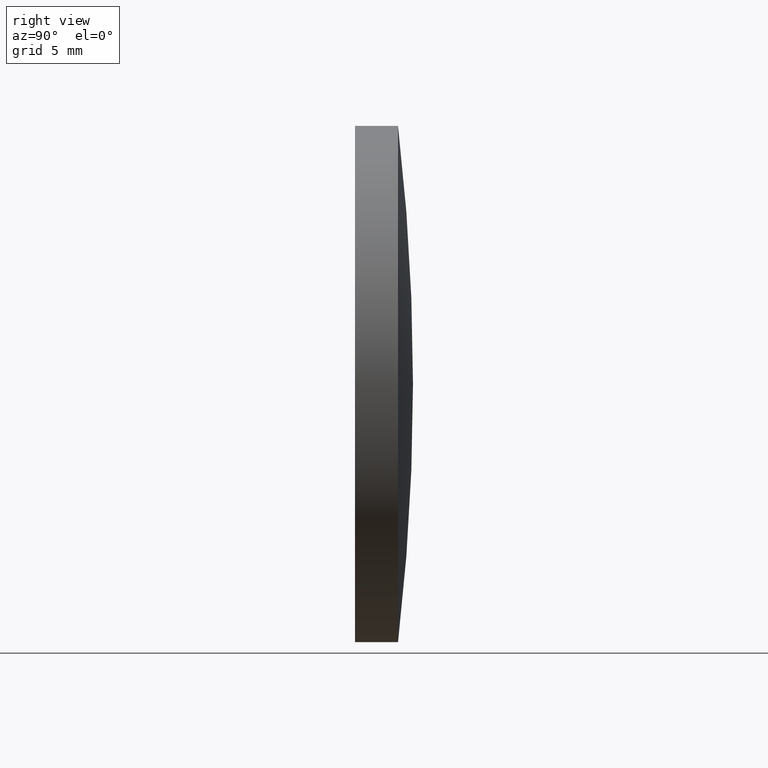
[diagram: clean part render]
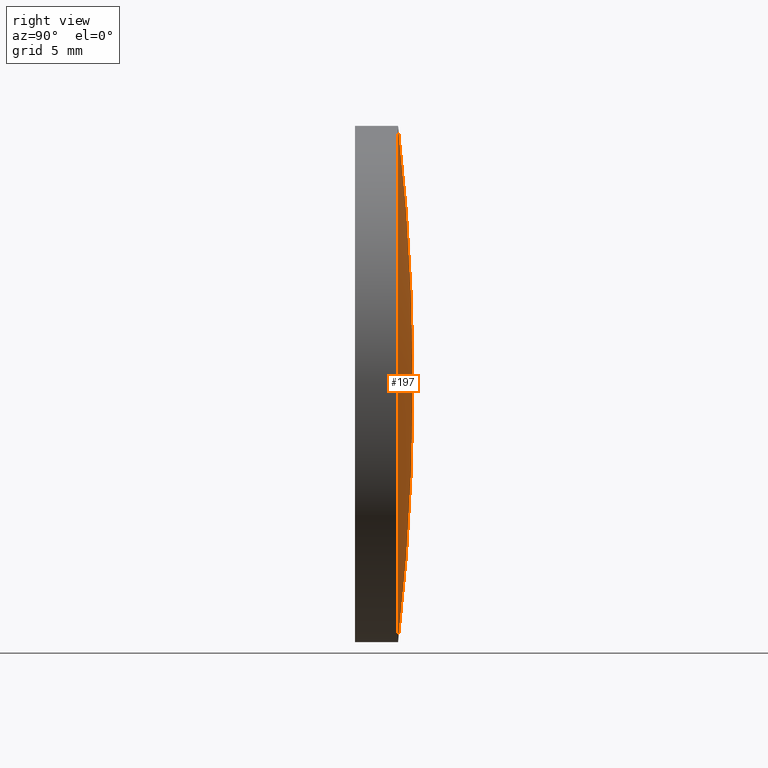
[diagram: same view with one face highlighted and labeled with its STEP entity id]
A machine part, right view. The second image highlights one B-rep face of the part: STEP entity #197.
In plain terms, the highlighted toroidal blend (fillet) surface has major radius 0.0293 mm and minor (blend) radius 129.24 mm.
Its self-contained STEP definition (entity closure, byte-faithful):
#15 = AXIS2_PLACEMENT_3D ( 'NONE', #142, #141, #201 ) ;
#33 = EDGE_LOOP ( 'NONE', ( #169, #168, #51 ) ) ;
#37 = CIRCLE ( 'NONE', #96, 15.00000000000000000 ) ;
#42 = FACE_OUTER_BOUND ( 'NONE', #33, .T. ) ;
#45 = DIRECTION ( 'NONE',  ( 0.000000000000000000, 0.000000000000000000, 1.000000000000000000 ) ) ;
#48 = AXIS2_PLACEMENT_3D ( 'NONE', #159, #176, #145 ) ;
#51 = ORIENTED_EDGE ( 'NONE', *, *, #121, .F. ) ;
#62 = CARTESIAN_POINT ( 'NONE',  ( 0.000000000000000000, 3.370000000000000107, 0.000000000000000000 ) ) ;
#75 = CARTESIAN_POINT ( 'NONE',  ( 1.836970198721026039E-15, 2.500000000000000444, -14.99999999999996980 ) ) ;
#77 = CARTESIAN_POINT ( 'NONE',  ( 0.000000000000000000, 2.500000000000000444, 14.99999999999996980 ) ) ;
#79 = CIRCLE ( 'NONE', #132, 129.2400000000000375 ) ;
#88 = VERTEX_POINT ( 'NONE', #75 ) ;
#93 = TOROIDAL_SURFACE ( 'NONE', #48, 0.02931019276951850328, 129.2400000000000375 ) ;
#96 = AXIS2_PLACEMENT_3D ( 'NONE', #144, #111, #45 ) ;
#111 = DIRECTION ( 'NONE',  ( -0.000000000000000000, 1.000000000000000000, -0.000000000000000000 ) ) ;
#112 = VERTEX_POINT ( 'NONE', #77 ) ;
#121 = EDGE_CURVE ( 'NONE', #112, #164, #143, .T. ) ;
#126 = CARTESIAN_POINT ( 'NONE',  ( 3.589463375758273298E-18, -125.8699966763873448, -0.02931019276951850328 ) ) ;
#132 = AXIS2_PLACEMENT_3D ( 'NONE', #126, #186, #160 ) ;
#137 = EDGE_CURVE ( 'NONE', #88, #164, #79, .T. ) ;
#141 = DIRECTION ( 'NONE',  ( -1.000000000000000000, 0.000000000000000000, 0.000000000000000000 ) ) ;
#142 = CARTESIAN_POINT ( 'NONE',  ( 0.000000000000000000, -125.8699966763873448, 0.02931019276951850328 ) ) ;
#143 = CIRCLE ( 'NONE', #15, 129.2400000000000375 ) ;
#144 = CARTESIAN_POINT ( 'NONE',  ( 0.000000000000000000, 2.499999999999998224, 0.000000000000000000 ) ) ;
#145 = DIRECTION ( 'NONE',  ( 0.000000000000000000, 0.000000000000000000, 1.000000000000000000 ) ) ;
#159 = CARTESIAN_POINT ( 'NONE',  ( 0.000000000000000000, -125.8699966763873448, 0.000000000000000000 ) ) ;
#160 = DIRECTION ( 'NONE',  ( 1.224646799147353454E-16, 0.000000000000000000, -1.000000000000000000 ) ) ;
#164 = VERTEX_POINT ( 'NONE', #62 ) ;
#167 = EDGE_CURVE ( 'NONE', #112, #88, #37, .T. ) ;
#168 = ORIENTED_EDGE ( 'NONE', *, *, #137, .T. ) ;
#169 = ORIENTED_EDGE ( 'NONE', *, *, #167, .T. ) ;
#176 = DIRECTION ( 'NONE',  ( -0.000000000000000000, 1.000000000000000000, -0.000000000000000000 ) ) ;
#186 = DIRECTION ( 'NONE',  ( 1.000000000000000000, 0.000000000000000000, 1.224646799147353207E-16 ) ) ;
#197 = ADVANCED_FACE ( 'NONE', ( #42 ), #93, .T. ) ;
#201 = DIRECTION ( 'NONE',  ( 0.000000000000000000, 0.000000000000000000, 1.000000000000000000 ) ) ;